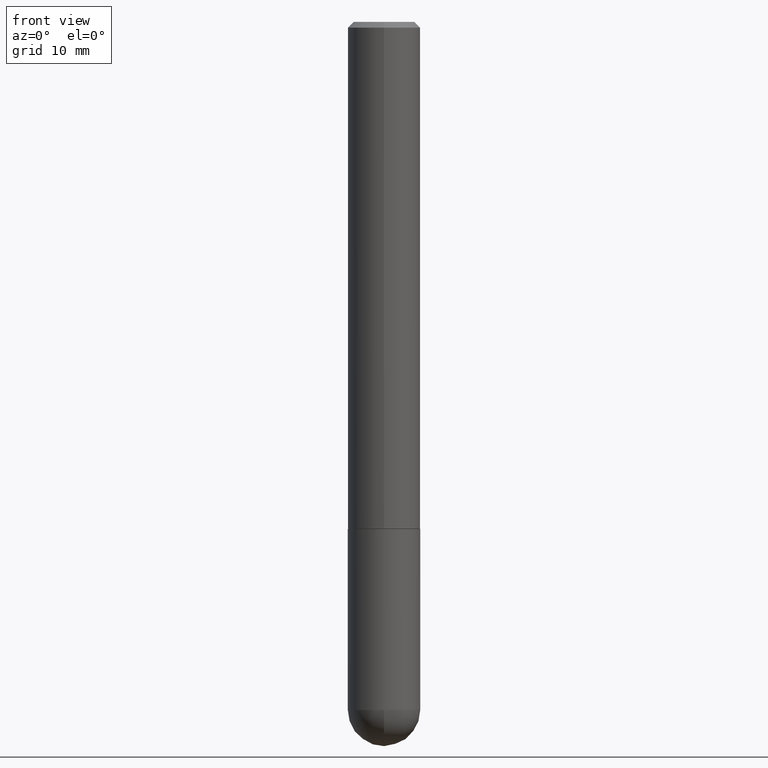
[diagram: clean part render]
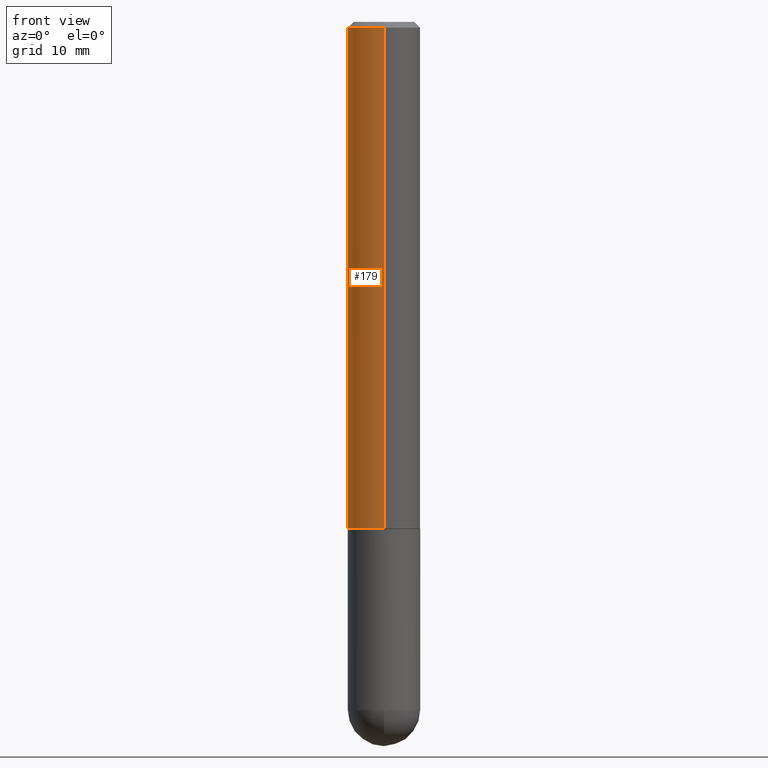
[diagram: same view with one face highlighted and labeled with its STEP entity id]
A machine part, front view. The second image highlights one B-rep face of the part: STEP entity #179.
In plain terms, the highlighted cylindrical surface (edge-blend (fillet) strip) has radius 3.175 mm, axis along (-0, 0, 1).
Its self-contained STEP definition (entity closure, byte-faithful):
#13 = VERTEX_POINT ( 'NONE', #334 ) ;
#16 = AXIS2_PLACEMENT_3D ( 'NONE', #276, #337, #344 ) ;
#34 = ORIENTED_EDGE ( 'NONE', *, *, #43, .T. ) ;
#35 = EDGE_CURVE ( 'NONE', #13, #328, #175, .T. ) ;
#39 = CARTESIAN_POINT ( 'NONE',  ( 8.728703347107837333E-16, 0.1249999999999999306, -0.02000000000000046185 ) ) ;
#43 = EDGE_CURVE ( 'NONE', #326, #13, #137, .T. ) ;
#62 = CIRCLE ( 'NONE', #322, 0.1250000000000000000 ) ;
#72 = EDGE_CURVE ( 'NONE', #326, #412, #241, .T. ) ;
#78 = ORIENTED_EDGE ( 'NONE', *, *, #72, .F. ) ;
#102 = AXIS2_PLACEMENT_3D ( 'NONE', #374, #144, #244 ) ;
#121 = CARTESIAN_POINT ( 'NONE',  ( 8.881784197001260212E-16, 0.1250000000000001110, -4.363926841074887247E-16 ) ) ;
#137 = CIRCLE ( 'NONE', #102, 0.1250000000000002498 ) ;
#144 = DIRECTION ( 'NONE',  ( -2.445706133332774021E-29, 3.491141472859906642E-15, 1.000000000000000000 ) ) ;
#149 = CARTESIAN_POINT ( 'NONE',  ( 8.881784197001479121E-16, 0.1249999999999941019, -1.749000000000000554 ) ) ;
#175 = LINE ( 'NONE', #372, #254 ) ;
#179 = ADVANCED_FACE ( 'NONE', ( #216 ), #402, .T. ) ;
#188 = CARTESIAN_POINT ( 'NONE',  ( -8.575622497214408537E-16, -0.1250000000000000555, -0.01999999999999959102 ) ) ;
#193 = DIRECTION ( 'NONE',  ( -6.982962677686265922E-15, -1.000000000000000000, 3.483106191921935554E-15 ) ) ;
#216 = FACE_OUTER_BOUND ( 'NONE', #238, .T. ) ;
#238 = EDGE_LOOP ( 'NONE', ( #78, #34, #331, #301 ) ) ;
#241 = LINE ( 'NONE', #121, #335 ) ;
#244 = DIRECTION ( 'NONE',  ( -6.982962677686265133E-15, -1.000000000000000000, 4.370956789862812472E-15 ) ) ;
#254 = VECTOR ( 'NONE', #281, 39.37007874015748143 ) ;
#276 = CARTESIAN_POINT ( 'NONE',  ( 0.000000000000000000, 0.000000000000000000, 0.000000000000000000 ) ) ;
#281 = DIRECTION ( 'NONE',  ( -2.445706133332773740E-29, 3.491141472859906642E-15, 1.000000000000000000 ) ) ;
#295 = EDGE_CURVE ( 'NONE', #412, #328, #62, .T. ) ;
#301 = ORIENTED_EDGE ( 'NONE', *, *, #295, .F. ) ;
#311 = DIRECTION ( 'NONE',  ( -2.445706133332773740E-29, 3.491141472859906642E-15, 1.000000000000000000 ) ) ;
#322 = AXIS2_PLACEMENT_3D ( 'NONE', #351, #385, #193 ) ;
#326 = VERTEX_POINT ( 'NONE', #149 ) ;
#328 = VERTEX_POINT ( 'NONE', #188 ) ;
#331 = ORIENTED_EDGE ( 'NONE', *, *, #35, .T. ) ;
#334 = CARTESIAN_POINT ( 'NONE',  ( -8.728703347107421208E-16, -0.1250000000000063560, -1.748999999999999666 ) ) ;
#335 = VECTOR ( 'NONE', #311, 39.37007874015748143 ) ;
#337 = DIRECTION ( 'NONE',  ( -2.445706133332774021E-29, 3.491141472859906642E-15, 1.000000000000000000 ) ) ;
#344 = DIRECTION ( 'NONE',  ( -6.982962677686266711E-15, -1.000000000000000000, 3.491141472859906642E-15 ) ) ;
#351 = CARTESIAN_POINT ( 'NONE',  ( 4.891412266665553962E-31, -6.982282945719821124E-17, -0.02000000000000002470 ) ) ;
#372 = CARTESIAN_POINT ( 'NONE',  ( -8.728703347107841277E-16, -0.1250000000000001110, 4.363926841074887247E-16 ) ) ;
#374 = CARTESIAN_POINT ( 'NONE',  ( 4.277540027199021844E-29, -6.106006436031975850E-15, -1.749000000000000110 ) ) ;
#385 = DIRECTION ( 'NONE',  ( -2.445706133332774021E-29, 3.491141472859906642E-15, 1.000000000000000000 ) ) ;
#402 = CYLINDRICAL_SURFACE ( 'NONE', #16, 0.1250000000000001110 ) ;
#412 = VERTEX_POINT ( 'NONE', #39 ) ;